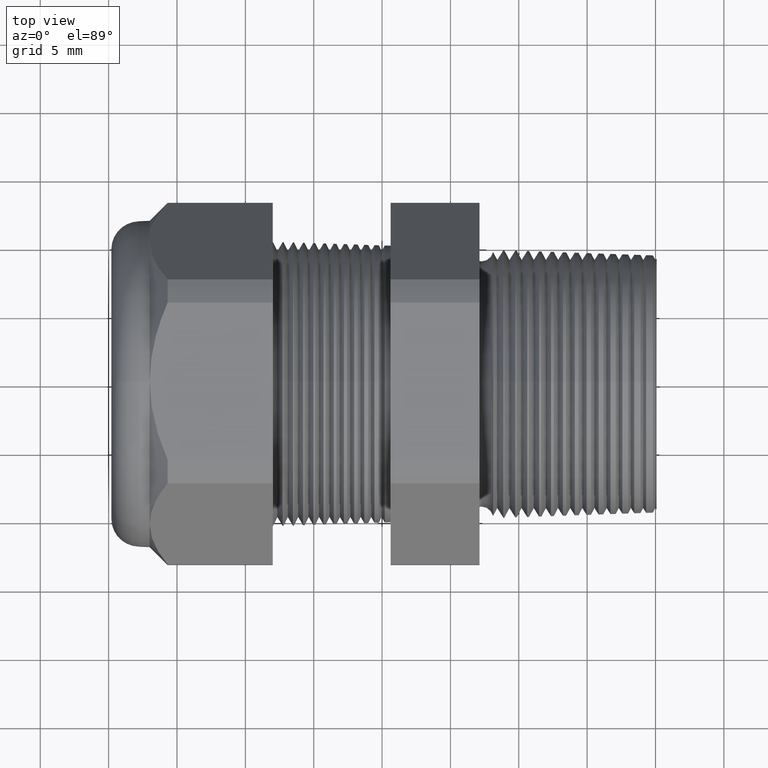
[diagram: clean part render]
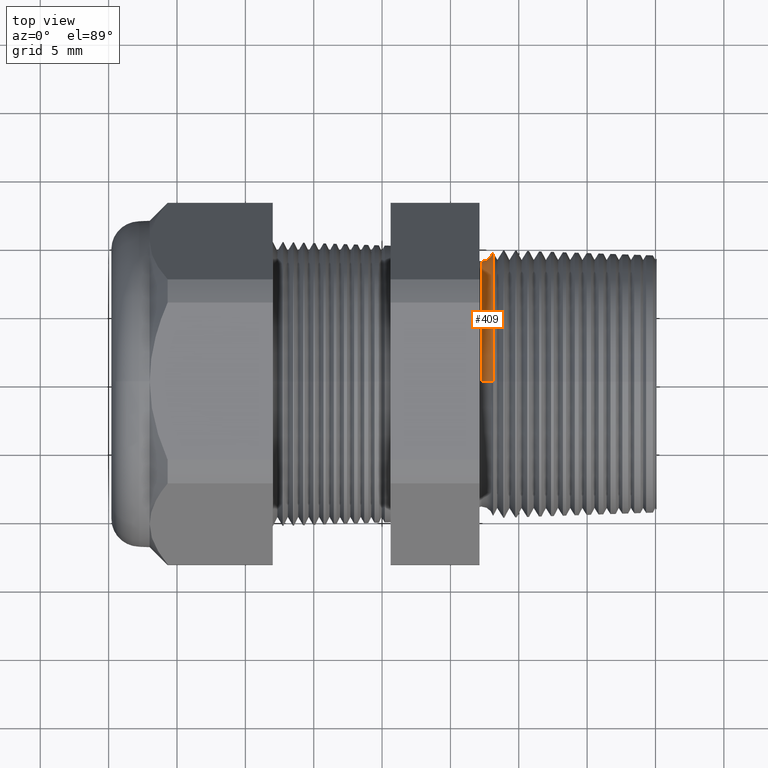
[diagram: same view with one face highlighted and labeled with its STEP entity id]
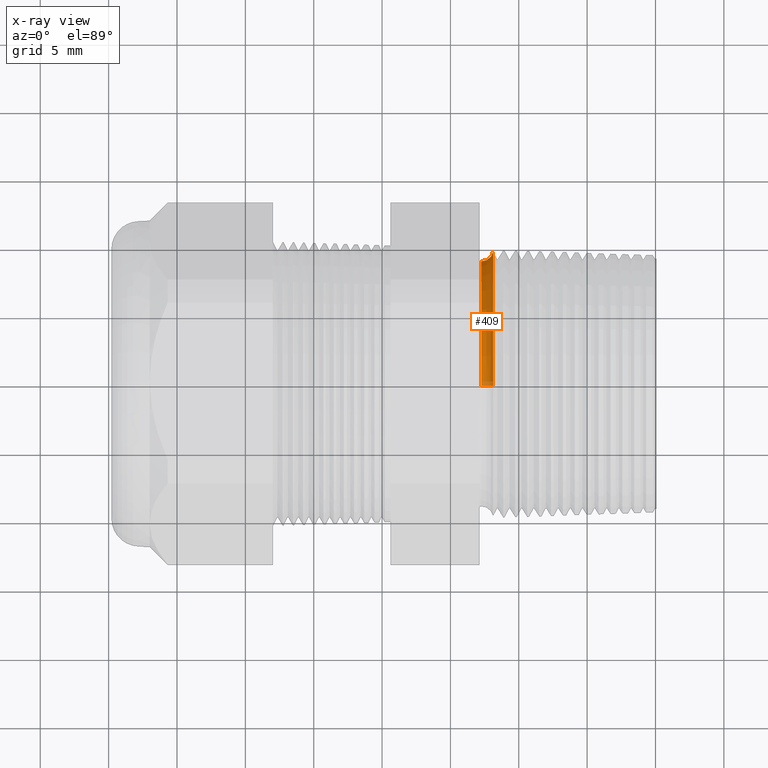
[diagram: x-ray of the same camera — body ghosted, the highlighted face saturated]
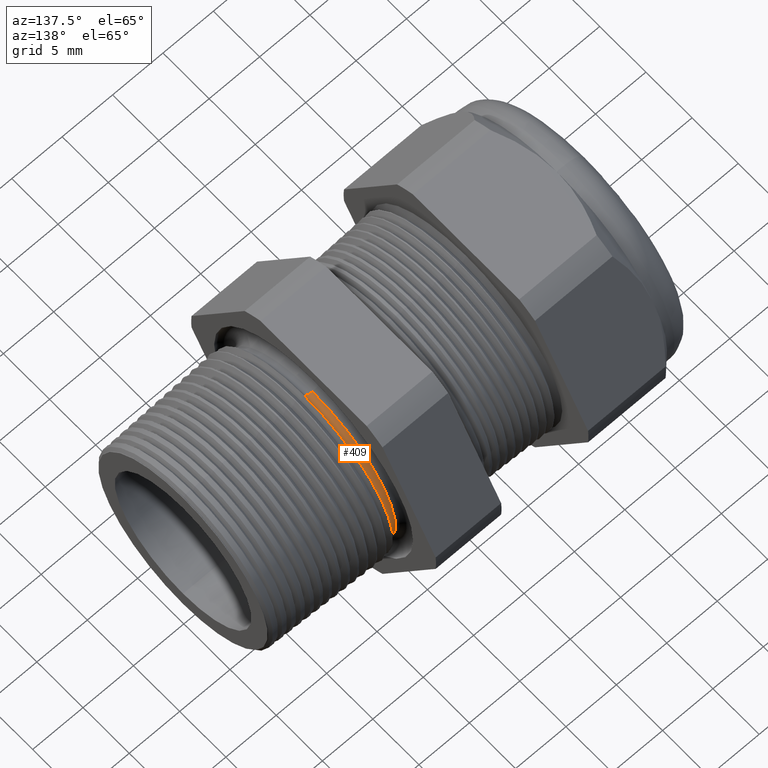
[diagram: same view with one face highlighted and labeled with its STEP entity id]
A machine part, top view. The second image highlights one B-rep face of the part: STEP entity #409.
The next image is the same camera in x-ray: the body ghosted, the highlighted face saturated — about 4% of this face is hidden behind the body in this view.
A second angle (auxiliary view) of the same face is appended — the face is thin or edge-on in the first view.
In plain terms, the highlighted toroidal blend (fillet) surface has major radius 9.8859 mm and minor (blend) radius 0.889 mm.
Its self-contained STEP definition (entity closure, byte-faithful):
#334 = VERTEX_POINT ( 'NONE', #2177 ) ;
#335 = VERTEX_POINT ( 'NONE', #2176 ) ;
#337 = ORIENTED_EDGE ( 'NONE', *, *, #338, .F. ) ;
#338 = EDGE_CURVE ( 'NONE', #339, #424, #2175, .T. ) ;
#339 = VERTEX_POINT ( 'NONE', #2170 ) ;
#340 = ORIENTED_EDGE ( 'NONE', *, *, #341, .F. ) ;
#341 = EDGE_CURVE ( 'NONE', #334, #339, #2169, .T. ) ;
#409 = ADVANCED_FACE ( 'NONE', ( #2309 ), #2306, .F. ) ;
#410 = EDGE_LOOP ( 'NONE', ( #411, #422, #337, #340 ) ) ;
#411 = ORIENTED_EDGE ( 'NONE', *, *, #412, .T. ) ;
#412 = EDGE_CURVE ( 'NONE', #334, #335, #2302, .T. ) ;
#422 = ORIENTED_EDGE ( 'NONE', *, *, #423, .T. ) ;
#423 = EDGE_CURVE ( 'NONE', #335, #424, #2344, .T. ) ;
#424 = VERTEX_POINT ( 'NONE', #2339 ) ;
#2165 = DIRECTION ( 'NONE',  ( 0.0000000000000000000, 0.0000000000000000000, 1.000000000000000000 ) ) ;
#2166 = DIRECTION ( 'NONE',  ( 1.000000000000000000, 0.0000000000000000000, 0.0000000000000000000 ) ) ;
#2167 = CARTESIAN_POINT ( 'NONE',  ( -0.2708719432804220800, 0.0000000000000000000, 0.0000000000000000000 ) ) ;
#2168 = AXIS2_PLACEMENT_3D ( 'NONE', #2167, #2166, #2165 ) ;
#2169 = CIRCLE ( 'NONE', #2168, 0.3814432734615635900 ) ;
#2170 = CARTESIAN_POINT ( 'NONE',  ( -0.2708719432804220800, 0.0000000000000000000, 0.3814432734615635900 ) ) ;
#2171 = DIRECTION ( 'NONE',  ( 0.0000000000000000000, 1.224646799147352700E-016, 1.000000000000000000 ) ) ;
#2172 = DIRECTION ( 'NONE',  ( 0.0000000000000000000, 1.000000000000000000, -1.224646799147353200E-016 ) ) ;
#2173 = CARTESIAN_POINT ( 'NONE',  ( -0.3049999999999999400, 4.766411300050807300E-017, 0.3892070189845242000 ) ) ;
#2174 = AXIS2_PLACEMENT_3D ( 'NONE', #2173, #2172, #2171 ) ;
#2175 = CIRCLE ( 'NONE', #2174, 0.03499999999999996900 ) ;
#2176 = CARTESIAN_POINT ( 'NONE',  ( -0.3049999999999999400, 0.0000000000000000000, -0.3542070189845242800 ) ) ;
#2177 = CARTESIAN_POINT ( 'NONE',  ( -0.2708719432804220800, 4.671332839009923800E-017, -0.3814432734615635900 ) ) ;
#2299 = DIRECTION ( 'NONE',  ( 0.0000000000000000000, 0.0000000000000000000, -1.000000000000000000 ) ) ;
#2300 = DIRECTION ( 'NONE',  ( 0.0000000000000000000, -1.000000000000000000, 0.0000000000000000000 ) ) ;
#2301 = AXIS2_PLACEMENT_3D ( 'NONE', #2307, #2300, #2299 ) ;
#2302 = CIRCLE ( 'NONE', #2301, 0.03499999999999996900 ) ;
#2303 = DIRECTION ( 'NONE',  ( 0.0000000000000000000, 0.0000000000000000000, -1.000000000000000000 ) ) ;
#2304 = DIRECTION ( 'NONE',  ( 1.000000000000000000, 0.0000000000000000000, 0.0000000000000000000 ) ) ;
#2305 = AXIS2_PLACEMENT_3D ( 'NONE', #2308, #2304, #2303 ) ;
#2306 = TOROIDAL_SURFACE ( 'NONE', #2305, 0.3892070189845242000, 0.03499999999999994800 ) ;
#2307 = CARTESIAN_POINT ( 'NONE',  ( -0.3049999999999999400, 0.0000000000000000000, -0.3892070189845242000 ) ) ;
#2308 = CARTESIAN_POINT ( 'NONE',  ( -0.3049999999999999400, 0.0000000000000000000, 0.0000000000000000000 ) ) ;
#2309 = FACE_OUTER_BOUND ( 'NONE', #410, .T. ) ;
#2339 = CARTESIAN_POINT ( 'NONE',  ( -0.3049999999999999400, 4.337784920349233400E-017, 0.3542070189845242800 ) ) ;
#2340 = DIRECTION ( 'NONE',  ( 0.0000000000000000000, 0.0000000000000000000, -1.000000000000000000 ) ) ;
#2341 = DIRECTION ( 'NONE',  ( 1.000000000000000000, 0.0000000000000000000, 0.0000000000000000000 ) ) ;
#2342 = CARTESIAN_POINT ( 'NONE',  ( -0.3049999999999999400, 0.0000000000000000000, 0.0000000000000000000 ) ) ;
#2343 = AXIS2_PLACEMENT_3D ( 'NONE', #2342, #2341, #2340 ) ;
#2344 = CIRCLE ( 'NONE', #2343, 0.3542070189845242800 ) ;